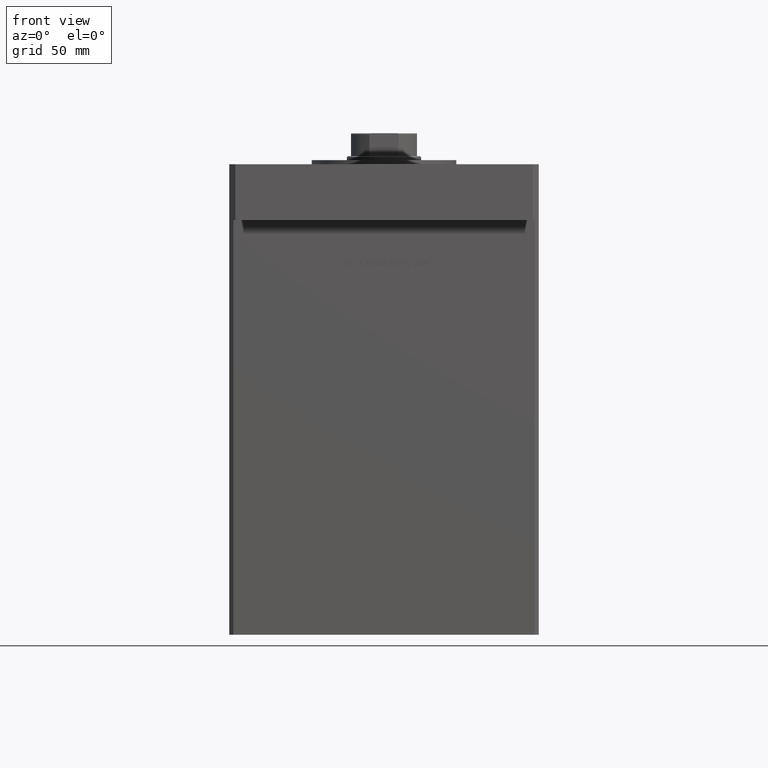
[diagram: clean part render]
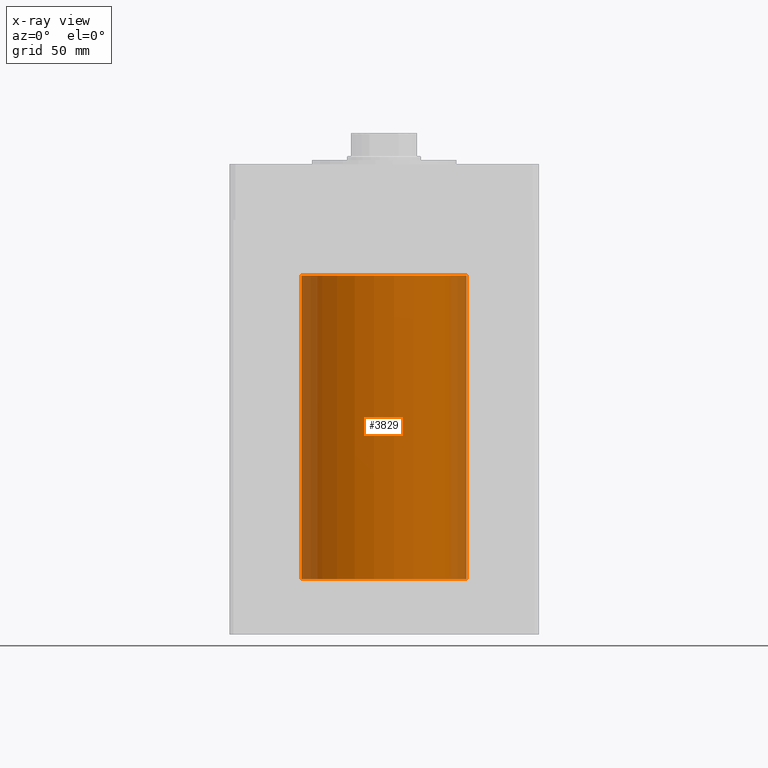
[diagram: x-ray — body ghosted, one internal face saturated and labeled with its STEP entity id]
A machine part, front view, then the same camera in x-ray: the body is ghosted and one INTERNAL B-rep face — a face not visible from any outside direction — is saturated and labeled: STEP entity #3829.
In plain terms, the highlighted cylindrical surface (partial cylindrical patch) has radius 40 mm, axis along (-0, -0, -1).
Its self-contained STEP definition (entity closure, byte-faithful):
#85 = DIRECTION ( 'NONE',  ( -0.000000000000000000, 0.000000000000000000, 1.000000000000000000 ) ) ;
#1339 = VERTEX_POINT ( 'NONE', #41408 ) ;
#1921 = DIRECTION ( 'NONE',  ( -0.000000000000000000, -0.000000000000000000, -1.000000000000000000 ) ) ;
#1989 = CARTESIAN_POINT ( 'NONE',  ( 0.000000000000000000, 0.000000000000000000, 147.0000000000000000 ) ) ;
#3829 = ADVANCED_FACE ( 'NONE', ( #34820 ), #47473, .F. ) ;
#5038 = ORIENTED_EDGE ( 'NONE', *, *, #27825, .F. ) ;
#5376 = CARTESIAN_POINT ( 'NONE',  ( 0.000000000000000000, 0.000000000000000000, 0.000000000000000000 ) ) ;
#5563 = CARTESIAN_POINT ( 'NONE',  ( -40.00000000000000000, 0.000000000000000000, 147.0000000000000000 ) ) ;
#5958 = AXIS2_PLACEMENT_3D ( 'NONE', #1989, #39386, #51263 ) ;
#10090 = DIRECTION ( 'NONE',  ( 1.000000000000000000, 0.000000000000000000, 0.000000000000000000 ) ) ;
#13895 = LINE ( 'NONE', #5563, #19217 ) ;
#16002 = VECTOR ( 'NONE', #1921, 1000.000000000000000 ) ;
#18338 = LINE ( 'NONE', #35265, #16002 ) ;
#18448 = ORIENTED_EDGE ( 'NONE', *, *, #37672, .F. ) ;
#19217 = VECTOR ( 'NONE', #26269, 1000.000000000000000 ) ;
#20318 = AXIS2_PLACEMENT_3D ( 'NONE', #43187, #35101, #10090 ) ;
#21874 = AXIS2_PLACEMENT_3D ( 'NONE', #5376, #85, #42516 ) ;
#24658 = ORIENTED_EDGE ( 'NONE', *, *, #50521, .T. ) ;
#26269 = DIRECTION ( 'NONE',  ( -0.000000000000000000, -0.000000000000000000, -1.000000000000000000 ) ) ;
#27825 = EDGE_CURVE ( 'NONE', #46229, #1339, #47658, .T. ) ;
#29039 = CARTESIAN_POINT ( 'NONE',  ( -40.00000000000000000, 0.000000000000000000, 0.000000000000000000 ) ) ;
#34820 = FACE_OUTER_BOUND ( 'NONE', #47229, .T. ) ;
#35101 = DIRECTION ( 'NONE',  ( -0.000000000000000000, 0.000000000000000000, 1.000000000000000000 ) ) ;
#35265 = CARTESIAN_POINT ( 'NONE',  ( 40.00000000000000000, 4.898587196589413026E-15, 147.0000000000000000 ) ) ;
#35742 = VERTEX_POINT ( 'NONE', #38574 ) ;
#37672 = EDGE_CURVE ( 'NONE', #35742, #46229, #13895, .T. ) ;
#38574 = CARTESIAN_POINT ( 'NONE',  ( -40.00000000000000000, 0.000000000000000000, 147.0000000000000000 ) ) ;
#39386 = DIRECTION ( 'NONE',  ( -0.000000000000000000, -0.000000000000000000, -1.000000000000000000 ) ) ;
#41408 = CARTESIAN_POINT ( 'NONE',  ( 40.00000000000000000, 4.898587196589413026E-15, 0.000000000000000000 ) ) ;
#42516 = DIRECTION ( 'NONE',  ( 1.000000000000000000, 0.000000000000000000, 0.000000000000000000 ) ) ;
#43187 = CARTESIAN_POINT ( 'NONE',  ( 0.000000000000000000, 0.000000000000000000, 147.0000000000000000 ) ) ;
#46229 = VERTEX_POINT ( 'NONE', #29039 ) ;
#47229 = EDGE_LOOP ( 'NONE', ( #24658, #53046, #5038, #18448 ) ) ;
#47473 = CYLINDRICAL_SURFACE ( 'NONE', #5958, 40.00000000000000000 ) ;
#47658 = CIRCLE ( 'NONE', #21874, 40.00000000000000000 ) ;
#48549 = CARTESIAN_POINT ( 'NONE',  ( 40.00000000000000000, 4.898587196589413026E-15, 147.0000000000000000 ) ) ;
#48872 = EDGE_CURVE ( 'NONE', #49720, #1339, #18338, .T. ) ;
#49589 = CIRCLE ( 'NONE', #20318, 40.00000000000000000 ) ;
#49720 = VERTEX_POINT ( 'NONE', #48549 ) ;
#50521 = EDGE_CURVE ( 'NONE', #35742, #49720, #49589, .T. ) ;
#51263 = DIRECTION ( 'NONE',  ( -1.000000000000000000, 0.000000000000000000, 0.000000000000000000 ) ) ;
#53046 = ORIENTED_EDGE ( 'NONE', *, *, #48872, .T. ) ;